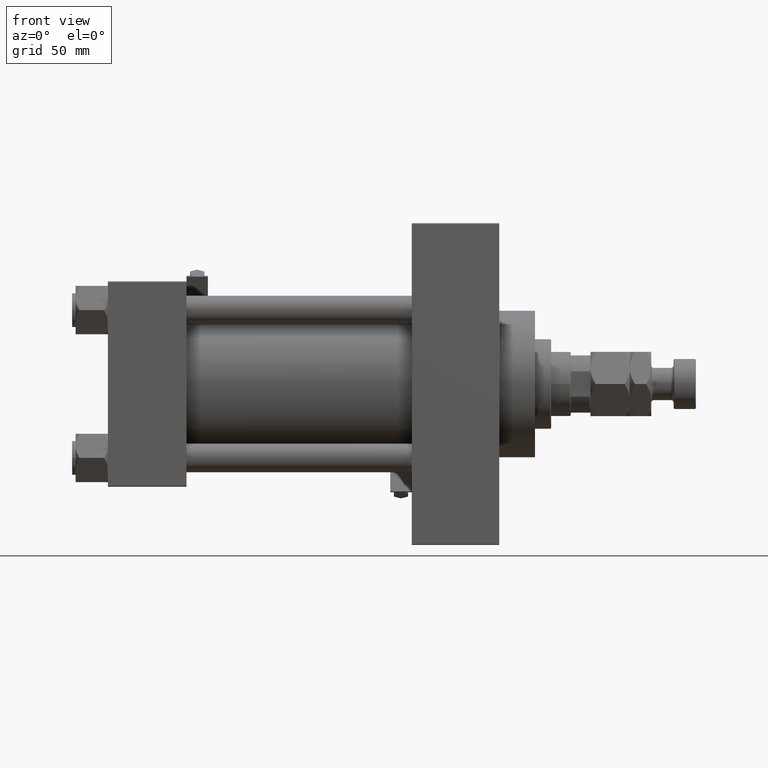
[diagram: clean part render]
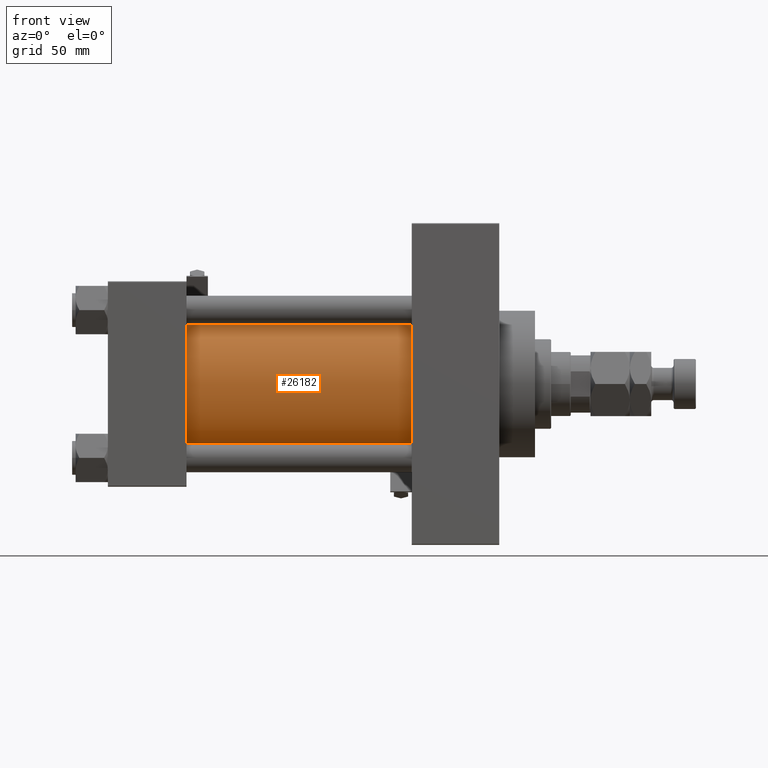
[diagram: same view with one face highlighted and labeled with its STEP entity id]
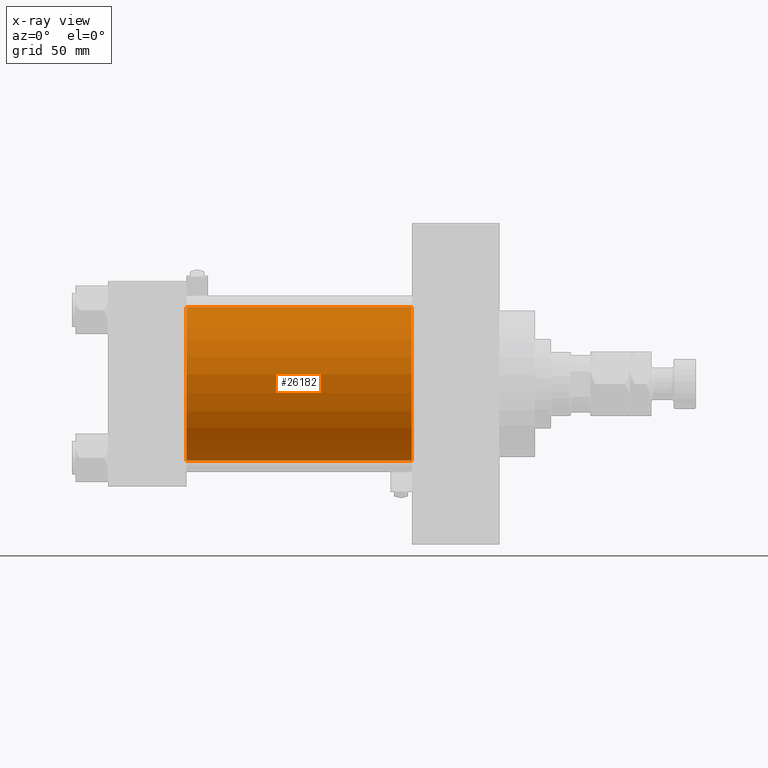
[diagram: x-ray of the same camera — body ghosted, the highlighted face saturated]
A machine part, front view. The second image highlights one B-rep face of the part: STEP entity #26182.
The next image is the same camera in x-ray: the body ghosted, the highlighted face saturated — about 1% of this face is hidden behind the body in this view.
In plain terms, the highlighted cylindrical surface (partial cylindrical patch) has radius 43 mm, axis along (-1, -0, -0).
Its self-contained STEP definition (entity closure, byte-faithful):
#1418 = DIRECTION ( 'NONE',  ( 1.000000000000000000, 0.000000000000000000, 0.000000000000000000 ) ) ;
#1761 = CARTESIAN_POINT ( 'NONE',  ( 169.9999999999999716, 2.663896022368408223E-15, -43.00000000000000000 ) ) ;
#3246 = VERTEX_POINT ( 'NONE', #8817 ) ;
#4852 = ORIENTED_EDGE ( 'NONE', *, *, #12240, .F. ) ;
#6489 = CARTESIAN_POINT ( 'NONE',  ( 169.9999999999999716, -2.602085213965210642E-15, 43.00000000000000000 ) ) ;
#7538 = DIRECTION ( 'NONE',  ( -1.000000000000000000, -0.000000000000000000, -0.000000000000000000 ) ) ;
#8817 = CARTESIAN_POINT ( 'NONE',  ( 169.9999999999999716, 2.663896022368408223E-15, -43.00000000000000000 ) ) ;
#11167 = CARTESIAN_POINT ( 'NONE',  ( 43.99999999999998579, 2.663896022368408223E-15, -43.00000000000000000 ) ) ;
#11874 = LINE ( 'NONE', #27677, #21700 ) ;
#12240 = EDGE_CURVE ( 'NONE', #12319, #3246, #45121, .T. ) ;
#12319 = VERTEX_POINT ( 'NONE', #6489 ) ;
#12336 = AXIS2_PLACEMENT_3D ( 'NONE', #26605, #45504, #42430 ) ;
#13458 = FACE_OUTER_BOUND ( 'NONE', #43232, .T. ) ;
#14348 = ORIENTED_EDGE ( 'NONE', *, *, #23421, .T. ) ;
#19137 = VECTOR ( 'NONE', #40795, 1000.000000000000000 ) ;
#19441 = ORIENTED_EDGE ( 'NONE', *, *, #49300, .T. ) ;
#20811 = DIRECTION ( 'NONE',  ( 0.000000000000000000, 0.000000000000000000, -1.000000000000000000 ) ) ;
#21700 = VECTOR ( 'NONE', #7538, 1000.000000000000000 ) ;
#23103 = AXIS2_PLACEMENT_3D ( 'NONE', #31775, #1418, #20811 ) ;
#23421 = EDGE_CURVE ( 'NONE', #24788, #27077, #37575, .T. ) ;
#23982 = CARTESIAN_POINT ( 'NONE',  ( 43.99999999999998579, -2.602085213965210642E-15, 43.00000000000000000 ) ) ;
#24788 = VERTEX_POINT ( 'NONE', #23982 ) ;
#24989 = LINE ( 'NONE', #1761, #19137 ) ;
#26182 = ADVANCED_FACE ( 'NONE', ( #13458 ), #33103, .T. ) ;
#26605 = CARTESIAN_POINT ( 'NONE',  ( 43.99999999999998579, -2.602085213965210642E-15, 0.000000000000000000 ) ) ;
#27077 = VERTEX_POINT ( 'NONE', #11167 ) ;
#27677 = CARTESIAN_POINT ( 'NONE',  ( 169.9999999999999716, -2.602085213965210642E-15, 43.00000000000000000 ) ) ;
#31775 = CARTESIAN_POINT ( 'NONE',  ( 169.9999999999999716, -2.602085213965210642E-15, 0.000000000000000000 ) ) ;
#32111 = EDGE_CURVE ( 'NONE', #3246, #27077, #24989, .T. ) ;
#33103 = CYLINDRICAL_SURFACE ( 'NONE', #34391, 43.00000000000000000 ) ;
#34391 = AXIS2_PLACEMENT_3D ( 'NONE', #48676, #44843, #45584 ) ;
#37575 = CIRCLE ( 'NONE', #12336, 43.00000000000000000 ) ;
#40795 = DIRECTION ( 'NONE',  ( -1.000000000000000000, -0.000000000000000000, -0.000000000000000000 ) ) ;
#42430 = DIRECTION ( 'NONE',  ( 0.000000000000000000, 0.000000000000000000, 1.000000000000000000 ) ) ;
#43232 = EDGE_LOOP ( 'NONE', ( #49155, #4852, #19441, #14348 ) ) ;
#44843 = DIRECTION ( 'NONE',  ( -1.000000000000000000, -0.000000000000000000, -0.000000000000000000 ) ) ;
#45121 = CIRCLE ( 'NONE', #23103, 43.00000000000000000 ) ;
#45504 = DIRECTION ( 'NONE',  ( 1.000000000000000000, -0.000000000000000000, 0.000000000000000000 ) ) ;
#45584 = DIRECTION ( 'NONE',  ( 0.000000000000000000, 0.000000000000000000, 1.000000000000000000 ) ) ;
#48676 = CARTESIAN_POINT ( 'NONE',  ( 169.9999999999999716, -2.602085213965210642E-15, 0.000000000000000000 ) ) ;
#49155 = ORIENTED_EDGE ( 'NONE', *, *, #32111, .F. ) ;
#49300 = EDGE_CURVE ( 'NONE', #12319, #24788, #11874, .T. ) ;